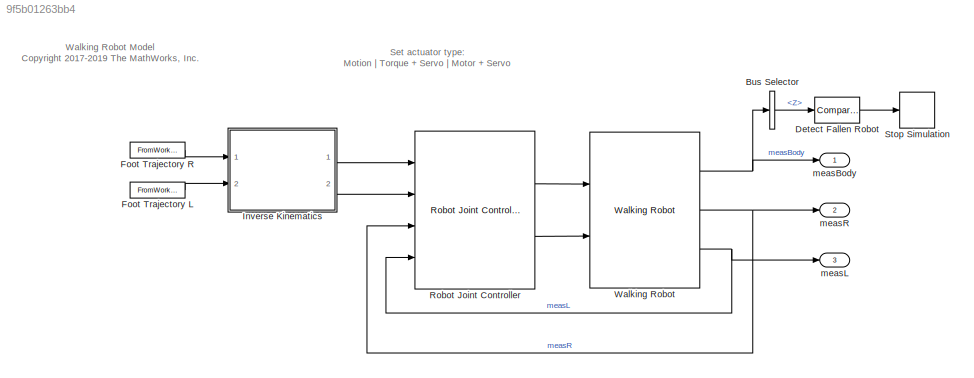
MODEL slx_9f5b01263bb4
KIND model
CONFIG AbsTol = auto
CONFIG EnableMultiTasking = off
CONFIG FixedStep = auto
CONFIG MaxStep = auto
CONFIG MinStep = auto
CONFIG PreLoadFcn = robotParameters\nload('defaultsimulationinputs.mat') 
CONFIG RelTol = 1e-3
CONFIG SampleTimeConstraint = Unconstrained
CONFIG Solver = VariableStepAuto
CONFIG SolverName = VariableStepAuto
CONFIG StartTime = 0.0
CONFIG StopTime = 10.0
BLOCK [BusSelector] Bus Selector
  OutputAsBus = off
  OutputSignals = Z
  Ports = [1, 1]
BLOCK [Reference] Detect Fallen Robot  REF=simulink/Logic and Bit
Operations/Compare
To Constant
  Ports = [1, 1]
  SourceBlock = simulink/Logic and Bit\nOperations/Compare\nTo Constant
  SourceProductBaseCode = SL
  SourceProductName = Simulink
  SourceType = Compare To Constant
BLOCK [FromWorkspace] Foot Trajectory L
  OutputAfterFinalValue = Holding final value
  SampleTime = 0
  VariableName = siminL
  ZeroCross = on
BLOCK [FromWorkspace] Foot Trajectory R
  OutputAfterFinalValue = Holding final value
  SampleTime = 0
  VariableName = siminR
  ZeroCross = on
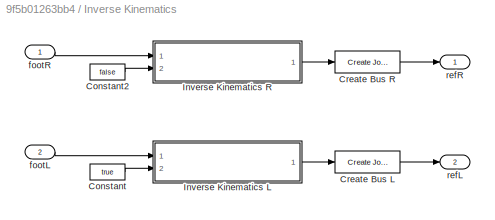
BLOCK [SubSystem] Inverse Kinematics
  Ports = [2, 2]
  RequestExecContextInheritance = off
BLOCK [Constant] Inverse Kinematics/Constant
  Value = true
BLOCK [Constant] Inverse Kinematics/Constant2
  Value = false
BLOCK [Reference] Inverse Kinematics/Create Bus L  REF=walkingRobotUtils/Create Joint Angle Bus
  Ports = [1, 1]
  SourceBlock = walkingRobotUtils/Create Joint Angle Bus
  SourceType = SubSystem
BLOCK [Reference] Inverse Kinematics/Create Bus R  REF=walkingRobotUtils/Create Joint Angle Bus
  Ports = [1, 1]
  SourceBlock = walkingRobotUtils/Create Joint Angle Bus
  SourceType = SubSystem
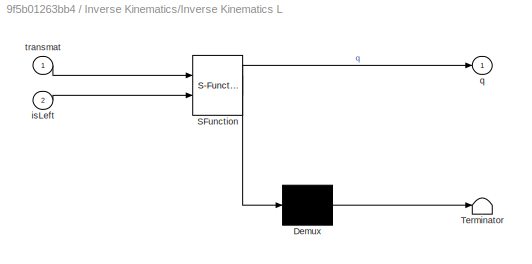
BLOCK [SubSystem] Inverse Kinematics/Inverse Kinematics L
  ErrorFcn = Stateflow.Translate.translate
  PermitHierarchicalResolution = ExplicitOnly
  Ports = [2, 1]
  RequestExecContextInheritance = off
  SFBlockType = MATLAB Function
  TreatAsAtomicUnit = on
BLOCK [Demux] Inverse Kinematics/Inverse Kinematics L/ Demux 
  Outputs = 1
  Ports = [1, 1]
BLOCK [S-Function] Inverse Kinematics/Inverse Kinematics L/ SFunction 
  EnableBusSupport = on
  FunctionName = sf_sfun
  PortCounts = [2 2]
  Ports = [2, 2]
  SFcnIsStateOwnerBlock = off
  SFunctionDeploymentMode = off
  Tag = Stateflow S-Function 1
BLOCK [Terminator] Inverse Kinematics/Inverse Kinematics L/ Terminator 
BLOCK [Inport] Inverse Kinematics/Inverse Kinematics L/isLeft
  IconDisplay = Port number
  Port = 2
BLOCK [Outport] Inverse Kinematics/Inverse Kinematics L/q
  IconDisplay = Port number
BLOCK [Inport] Inverse Kinematics/Inverse Kinematics L/transmat
  IconDisplay = Port number
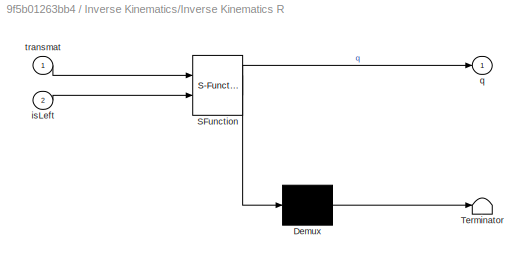
BLOCK [SubSystem] Inverse Kinematics/Inverse Kinematics R
  ErrorFcn = Stateflow.Translate.translate
  PermitHierarchicalResolution = ExplicitOnly
  Ports = [2, 1]
  RequestExecContextInheritance = off
  SFBlockType = MATLAB Function
  TreatAsAtomicUnit = on
BLOCK [Demux] Inverse Kinematics/Inverse Kinematics R/ Demux 
  Outputs = 1
  Ports = [1, 1]
BLOCK [S-Function] Inverse Kinematics/Inverse Kinematics R/ SFunction 
  EnableBusSupport = on
  FunctionName = sf_sfun
  PortCounts = [2 2]
  Ports = [2, 2]
  SFcnIsStateOwnerBlock = off
  SFunctionDeploymentMode = off
  Tag = Stateflow S-Function 2
BLOCK [Terminator] Inverse Kinematics/Inverse Kinematics R/ Terminator 
BLOCK [Inport] Inverse Kinematics/Inverse Kinematics R/isLeft
  IconDisplay = Port number
  Port = 2
BLOCK [Outport] Inverse Kinematics/Inverse Kinematics R/q
  IconDisplay = Port number
BLOCK [Inport] Inverse Kinematics/Inverse Kinematics R/transmat
  IconDisplay = Port number
BLOCK [Inport] Inverse Kinematics/footL
  IconDisplay = Port number
  Port = 2
BLOCK [Inport] Inverse Kinematics/footR
  IconDisplay = Port number
BLOCK [Outport] Inverse Kinematics/refL
  IconDisplay = Port number
  Port = 2
BLOCK [Outport] Inverse Kinematics/refR
  IconDisplay = Port number
BLOCK [Reference] Robot Joint Controller  REF=walkingRobotUtils/Robot Joint Controller
  Ports = [4, 2]
  SourceBlock = walkingRobotUtils/Robot Joint Controller
  SourceType = SubSystem
BLOCK [Stop] Stop Simulation
BLOCK [Reference] Walking Robot  REF=walkingRobotUtils/Walking Robot
  Ports = [2, 3]
  SourceBlock = walkingRobotUtils/Walking Robot
  SourceType = SubSystem
BLOCK [Outport] measBody
  IconDisplay = Port number
  VectorParamsAs1DForOutWhenUnconnected = off
BLOCK [Outport] measL
  IconDisplay = Port number
  Port = 3
  VectorParamsAs1DForOutWhenUnconnected = off
BLOCK [Outport] measR
  IconDisplay = Port number
  Port = 2
  VectorParamsAs1DForOutWhenUnconnected = off
ANNOTATION (root): Walking Robot Model <copyright redacted>
ANNOTATION (root): Set actuator type: Motion | Torque + Servo | Motor + Servo
LINE Bus Selector:1 -> Detect Fallen Robot:1
LINE Detect Fallen Robot:1 -> Stop Simulation:1
LINE Foot Trajectory L:1 -> Inverse Kinematics:2
LINE Foot Trajectory R:1 -> Inverse Kinematics:1
LINE Inverse Kinematics/Constant2:1 -> Inverse Kinematics/Inverse Kinematics R:2
LINE Inverse Kinematics/Constant:1 -> Inverse Kinematics/Inverse Kinematics L:2
LINE Inverse Kinematics/Create Bus L:1 -> Inverse Kinematics/refL:1
LINE Inverse Kinematics/Create Bus R:1 -> Inverse Kinematics/refR:1
LINE Inverse Kinematics/Inverse Kinematics L:1 -> Inverse Kinematics/Create Bus L:1
LINE Inverse Kinematics/Inverse Kinematics R:1 -> Inverse Kinematics/Create Bus R:1
LINE Inverse Kinematics/footL:1 -> Inverse Kinematics/Inverse Kinematics L:1
LINE Inverse Kinematics/footR:1 -> Inverse Kinematics/Inverse Kinematics R:1
LINE Inverse Kinematics:1 -> Robot Joint Controller:1
LINE Inverse Kinematics:2 -> Robot Joint Controller:2
LINE Robot Joint Controller:1 -> Walking Robot:1
LINE Robot Joint Controller:2 -> Walking Robot:2
NET Walking Robot:1 -> Bus Selector:1, measBody:1
NET Walking Robot:2 -> Robot Joint Controller:3, measR:1
NET Walking Robot:3 -> Robot Joint Controller:4, measL:1
note: NET lines group one-source signal fan-out (src -> all destinations, sorted); 1:1 wires keep LINE
CHART Inverse Kinematics/Inverse Kinematics L states=1 transitions=1
  STATE_LABEL 'eML_blk_kernel()'
  STATE_LABEL 'SCRIPT:\nfunction q = inverseKinematics(transmat, isLeft)\nq = invKinBody2Foot(transmat, isLeft); \n\n'
CHART Inverse Kinematics/Inverse Kinematics R states=1 transitions=1
  STATE_LABEL 'eML_blk_kernel()'
  STATE_LABEL 'SCRIPT:\nfunction q = inverseKinematics(transmat, isLeft)\nq = invKinBody2Foot(transmat, isLeft); \n\n'
